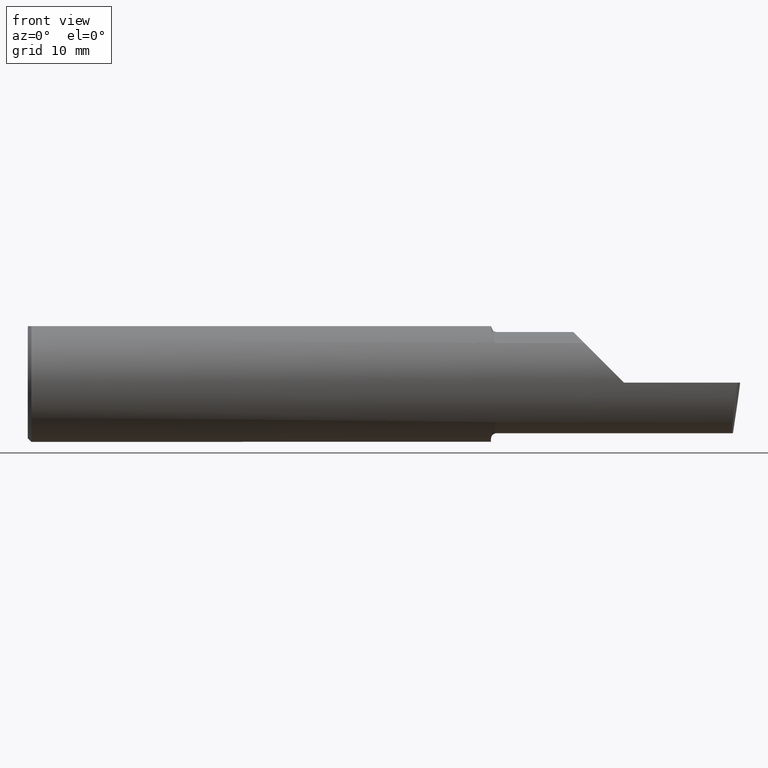
[diagram: clean part render]
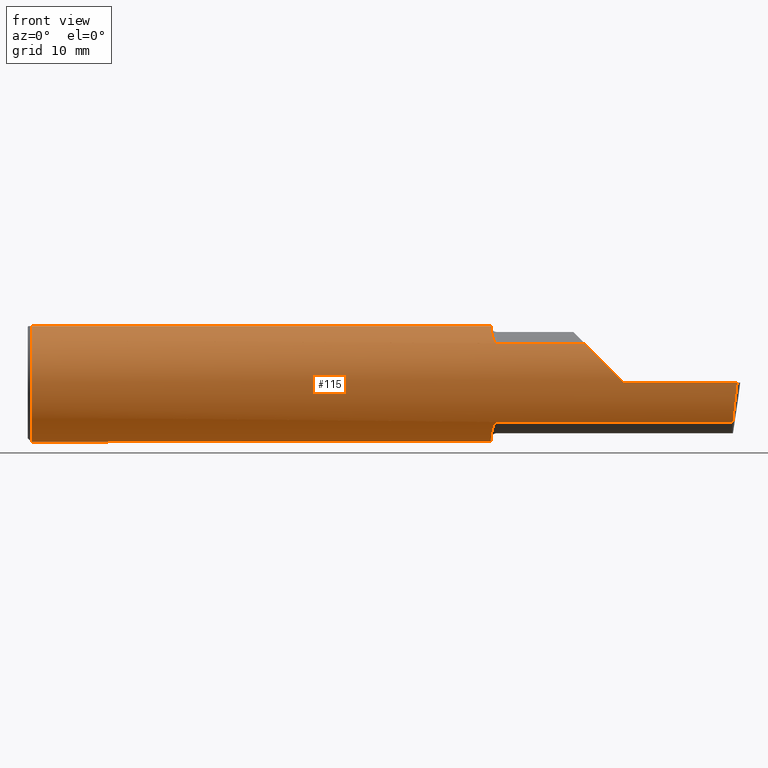
[diagram: same view with one face highlighted and labeled with its STEP entity id]
A machine part, front view. The second image highlights one B-rep face of the part: STEP entity #115.
In plain terms, the highlighted cylindrical surface (partial cylindrical patch) has radius 6.3462 mm, axis along (-1, -0, -0).
Its self-contained STEP definition (entity closure, byte-faithful):
#8 = CARTESIAN_POINT ( 'NONE',  ( 1.962797058507744996, -0.1743943839926588579, -0.1789958554125695989 ) ) ;
#9 = DIRECTION ( 'NONE',  ( 0.000000000000000000, 0.000000000000000000, -1.000000000000000000 ) ) ;
#12 = EDGE_CURVE ( 'NONE', #95, #238, #275, .T. ) ;
#13 = DIRECTION ( 'NONE',  ( -1.000000000000000000, -0.000000000000000000, -0.000000000000000000 ) ) ;
#15 = CIRCLE ( 'NONE', #571, 0.2498499999999999888 ) ;
#33 = CARTESIAN_POINT ( 'NONE',  ( 2.448145753305722927, -0.2498500000000000165, 0.06185424669427665861 ) ) ;
#42 = CARTESIAN_POINT ( 'NONE',  ( 1.951680550596499808, -0.1214972057705730191, 0.2186080375779522467 ) ) ;
#51 = CARTESIAN_POINT ( 'NONE',  ( 2.390325100969863392, -0.2278791102234763166, 0.1196748990301357285 ) ) ;
#57 = CARTESIAN_POINT ( 'NONE',  ( 1.950000000000000178, -0.08036415094339657839, 0.2365726648265749632 ) ) ;
#62 = CARTESIAN_POINT ( 'NONE',  ( 1.949999999999990186, -0.1016924291521890261, -0.2293274111511740820 ) ) ;
#68 = DIRECTION ( 'NONE',  ( 0.000000000000000000, 0.000000000000000000, 1.000000000000000000 ) ) ;
#69 = ORIENTED_EDGE ( 'NONE', *, *, #773, .F. ) ;
#72 = CARTESIAN_POINT ( 'NONE',  ( 1.950000000000000178, 0.000000000000000000, 0.000000000000000000 ) ) ;
#76 = EDGE_CURVE ( 'NONE', #426, #238, #850, .T. ) ;
#81 = AXIS2_PLACEMENT_3D ( 'NONE', #794, #202, #68 ) ;
#87 = ORIENTED_EDGE ( 'NONE', *, *, #667, .F. ) ;
#95 = VERTEX_POINT ( 'NONE', #771 ) ;
#96 = LINE ( 'NONE', #297, #243 ) ;
#106 = CARTESIAN_POINT ( 'NONE',  ( 2.344079160038586185, -0.1868028301886760500, 0.1659208399614119644 ) ) ;
#115 = ADVANCED_FACE ( 'NONE', ( #183 ), #799, .T. ) ;
#120 = CIRCLE ( 'NONE', #636, 0.2498499999999999888 ) ;
#125 = CARTESIAN_POINT ( 'NONE',  ( 1.965857071685141788, -0.1799228808997979934, 0.1733778622677449033 ) ) ;
#129 = VERTEX_POINT ( 'NONE', #731 ) ;
#135 = CARTESIAN_POINT ( 'NONE',  ( 1.951227564404961257, -0.1217005943024295350, -0.2193523119135136479 ) ) ;
#152 = CARTESIAN_POINT ( 'NONE',  ( 0.01499999999999999771, 0.000000000000000000, 0.000000000000000000 ) ) ;
#176 = ORIENTED_EDGE ( 'NONE', *, *, #802, .T. ) ;
#178 = CARTESIAN_POINT ( 'NONE',  ( 1.973548866468135321, -0.1868028301907317112, 0.1659208399590980654 ) ) ;
#182 = CARTESIAN_POINT ( 'NONE',  ( 1.975000000000000089, -0.1868028301886793530, 0.1659208399614086338 ) ) ;
#183 = FACE_OUTER_BOUND ( 'NONE', #190, .T. ) ;
#184 = CARTESIAN_POINT ( 'NONE',  ( 1.957343635746627397, -0.1582230848692697256, 0.1936715022401949149 ) ) ;
#190 = EDGE_LOOP ( 'NONE', ( #546, #176, #419, #242, #296, #823, #658, #684, #87, #69, #655, #573, #828 ) ) ;
#198 = CARTESIAN_POINT ( 'NONE',  ( 2.344079160038586185, -0.1868028301886760500, 0.1659208399614119644 ) ) ;
#200 = CARTESIAN_POINT ( 'NONE',  ( 0.000000000000000000, -0.07650098038587496707, 0.2378499999999999226 ) ) ;
#202 = DIRECTION ( 'NONE',  ( -1.000000000000000000, -0.000000000000000000, -0.000000000000000000 ) ) ;
#207 = AXIS2_PLACEMENT_3D ( 'NONE', #72, #608, #556 ) ;
#210 = CARTESIAN_POINT ( 'NONE',  ( 1.972232603162240805, -0.1862758070845874914, -0.1665151405181425626 ) ) ;
#213 = VERTEX_POINT ( 'NONE', #863 ) ;
#224 = VERTEX_POINT ( 'NONE', #460 ) ;
#227 = CARTESIAN_POINT ( 'NONE',  ( 1.950000000000000178, 0.000000000000000000, 0.000000000000000000 ) ) ;
#230 = CARTESIAN_POINT ( 'NONE',  ( 2.510000000000000231, -0.2498499999999999610, 6.000769315822035917E-17 ) ) ;
#238 = VERTEX_POINT ( 'NONE', #198 ) ;
#239 = CARTESIAN_POINT ( 'NONE',  ( 1.970144309637441360, -0.1849788583324331326, 0.1679547276881067919 ) ) ;
#242 = ORIENTED_EDGE ( 'NONE', *, *, #12, .T. ) ;
#243 = VECTOR ( 'NONE', #367, 39.37007874015748143 ) ;
#245 = CARTESIAN_POINT ( 'NONE',  ( 2.260000000000000231, -0.1868028301886794917, 0.1659208399614086338 ) ) ;
#255 = CARTESIAN_POINT ( 'NONE',  ( 1.961268146151109448, -0.1703904609315280150, 0.1828159088808244681 ) ) ;
#269 = CARTESIAN_POINT ( 'NONE',  ( 1.973547768521294765, -0.1868028301886793807, -0.1659208399614086893 ) ) ;
#275 =( BOUNDED_CURVE ( )  B_SPLINE_CURVE ( 3, ( #230, #33, #51, #106 ),
 .UNSPECIFIED., .F., .T. ) 
 B_SPLINE_CURVE_WITH_KNOTS ( ( 4, 4 ),
 ( 4.712388980384689674, 5.438654041019590935 ),
 .UNSPECIFIED. ) 
 CURVE ( )  GEOMETRIC_REPRESENTATION_ITEM ( )  RATIONAL_B_SPLINE_CURVE ( ( 1.000000000000000000, 0.9565258159410974237, 0.9565258159410974237, 1.000000000000000000 ) ) 
 REPRESENTATION_ITEM ( '' )  );
#281 = EDGE_CURVE ( 'NONE', #622, #481, #15, .T. ) ;
#291 = DIRECTION ( 'NONE',  ( -1.000000000000000000, -0.000000000000000000, -0.000000000000000000 ) ) ;
#296 = ORIENTED_EDGE ( 'NONE', *, *, #76, .F. ) ;
#297 = CARTESIAN_POINT ( 'NONE',  ( 1.878049121262586821E-31, -0.2498499999999999610, 7.172378389328440442E-16 ) ) ;
#304 = DIRECTION ( 'NONE',  ( 1.000000000000000000, 0.000000000000000000, 0.000000000000000000 ) ) ;
#311 = CARTESIAN_POINT ( 'NONE',  ( 1.952700302592143000, -0.1312404656039926620, 0.2128935242986064735 ) ) ;
#327 = VERTEX_POINT ( 'NONE', #826 ) ;
#328 = CARTESIAN_POINT ( 'NONE',  ( 1.950000000000000178, -0.08036415094339657839, -0.2365726648265749632 ) ) ;
#342 = CARTESIAN_POINT ( 'NONE',  ( 1.975000000000000089, -0.1868028301886793530, -0.1659208399614086338 ) ) ;
#358 =( BOUNDED_CURVE ( )  B_SPLINE_CURVE ( 3, ( #660, #480, #607, #867 ),
 .UNSPECIFIED., .F., .F. ) 
 B_SPLINE_CURVE_WITH_KNOTS ( ( 4, 4 ),
 ( 0.6344818218799018750, 1.360746882514782818 ),
 .UNSPECIFIED. ) 
 CURVE ( )  GEOMETRIC_REPRESENTATION_ITEM ( )  RATIONAL_B_SPLINE_CURVE ( ( 1.000000000000000000, 0.9565258159410998662, 0.9565258159410998662, 1.000000000000000000 ) ) 
 REPRESENTATION_ITEM ( '' )  );
#367 = DIRECTION ( 'NONE',  ( -1.000000000000000000, -0.000000000000000000, -0.000000000000000000 ) ) ;
#377 = EDGE_CURVE ( 'NONE', #327, #396, #422, .T. ) ;
#395 = B_SPLINE_CURVE_WITH_KNOTS ( 'NONE', 3,
 ( #57, #858, #521, #42, #311, #719, #184, #255, #849, #125, #580, #505, #239, #455, #178, #182 ),
 .UNSPECIFIED., .F., .F.,
 ( 4, 2, 2, 2, 2, 2, 2, 4 ),
 ( 0.0001034694911878116782, 0.0009591263138367395061, 0.001814783136485667320, 0.002670439959134594810, 0.003098268370459057036, 0.003312182576121292053, 0.003419139678952403272, 0.003526096781783514926 ),
 .UNSPECIFIED. ) ;
#396 = VERTEX_POINT ( 'NONE', #508 ) ;
#397 = CARTESIAN_POINT ( 'NONE',  ( 1.965875558094660303, -0.1799506819598040708, -0.1733486322212179631 ) ) ;
#405 = LINE ( 'NONE', #543, #447 ) ;
#419 = ORIENTED_EDGE ( 'NONE', *, *, #784, .T. ) ;
#420 = VECTOR ( 'NONE', #503, 39.37007874015748143 ) ;
#422 = CIRCLE ( 'NONE', #207, 0.2498499999999999888 ) ;
#424 = LINE ( 'NONE', #760, #788 ) ;
#426 = VERTEX_POINT ( 'NONE', #706 ) ;
#431 = DIRECTION ( 'NONE',  ( 0.000000000000000000, 0.000000000000000000, 1.000000000000000000 ) ) ;
#438 = EDGE_CURVE ( 'NONE', #396, #426, #395, .T. ) ;
#447 = VECTOR ( 'NONE', #479, 39.37007874015748143 ) ;
#455 = CARTESIAN_POINT ( 'NONE',  ( 1.972243150415551316, -0.1862809296394745129, 0.1665094106511989802 ) ) ;
#460 = CARTESIAN_POINT ( 'NONE',  ( 2.987221270274237561, -0.2498499999999999888, -6.495017623931042258E-17 ) ) ;
#468 = CARTESIAN_POINT ( 'NONE',  ( 0.01499999999998188026, -0.07650098038590467941, 0.2378500000000000059 ) ) ;
#470 = CARTESIAN_POINT ( 'NONE',  ( 1.969285582744839891, -0.1841881072713810741, -0.1688230283719349967 ) ) ;
#479 = DIRECTION ( 'NONE',  ( 1.000000000000000000, 0.000000000000000000, 0.000000000000000000 ) ) ;
#480 = CARTESIAN_POINT ( 'NONE',  ( 2.973097331270539989, -0.2278791102234774546, -0.1196748990301325227 ) ) ;
#481 = VERTEX_POINT ( 'NONE', #645 ) ;
#483 = VERTEX_POINT ( 'NONE', #586 ) ;
#487 = DIRECTION ( 'NONE',  ( -1.000000000000000000, -0.000000000000000000, -0.000000000000000000 ) ) ;
#503 = DIRECTION ( 'NONE',  ( 1.000000000000000000, 0.000000000000000000, 0.000000000000000000 ) ) ;
#505 = CARTESIAN_POINT ( 'NONE',  ( 1.969290397284158889, -0.1841927918507049733, 0.1688179232533557061 ) ) ;
#506 = VERTEX_POINT ( 'NONE', #342 ) ;
#508 = CARTESIAN_POINT ( 'NONE',  ( 1.950000000000000178, -0.08036415094339657839, 0.2365726648265749632 ) ) ;
#509 = EDGE_CURVE ( 'NONE', #327, #594, #664, .T. ) ;
#513 = B_SPLINE_CURVE_WITH_KNOTS ( 'NONE', 3,
 ( #590, #269, #210, #725, #470, #611, #397, #8, #547, #746, #659, #135, #62, #328 ),
 .UNSPECIFIED., .F., .F.,
 ( 4, 2, 2, 2, 2, 2, 4 ),
 ( 1.967619685218957390E-07, 0.0001090840123077855292, 0.0002179712626470491467, 0.0004357457633255781165, 0.0008712947646826340502, 0.001742392767396750905, 0.003484588772824981362 ),
 .UNSPECIFIED. ) ;
#515 = EDGE_CURVE ( 'NONE', #483, #481, #405, .T. ) ;
#521 = CARTESIAN_POINT ( 'NONE',  ( 1.950332084145229850, -0.1014027185340447140, 0.2286231260779312269 ) ) ;
#543 = CARTESIAN_POINT ( 'NONE',  ( 0.000000000000000000, 0.07650098038587500870, 0.2378499999999999226 ) ) ;
#546 = ORIENTED_EDGE ( 'NONE', *, *, #714, .F. ) ;
#547 = CARTESIAN_POINT ( 'NONE',  ( 1.961285743882607679, -0.1704402150608117228, -0.1827701868778695560 ) ) ;
#555 = CARTESIAN_POINT ( 'NONE',  ( 0.01499999999999999771, 0.000000000000000000, 0.000000000000000000 ) ) ;
#556 = DIRECTION ( 'NONE',  ( 0.000000000000000000, 0.000000000000000000, -1.000000000000000000 ) ) ;
#557 = AXIS2_PLACEMENT_3D ( 'NONE', #555, #291, #698 ) ;
#562 = EDGE_CURVE ( 'NONE', #506, #622, #513, .T. ) ;
#571 = AXIS2_PLACEMENT_3D ( 'NONE', #227, #304, #9 ) ;
#573 = ORIENTED_EDGE ( 'NONE', *, *, #281, .F. ) ;
#580 = CARTESIAN_POINT ( 'NONE',  ( 1.967018584423771976, -0.1817363555988615875, 0.1714722504633802991 ) ) ;
#586 = CARTESIAN_POINT ( 'NONE',  ( 0.01499999999999999771, 0.07650098038587500870, 0.2378499999999999226 ) ) ;
#590 = CARTESIAN_POINT ( 'NONE',  ( 1.975000000000000089, -0.1868028301886793530, -0.1659208399614086338 ) ) ;
#594 = VERTEX_POINT ( 'NONE', #468 ) ;
#607 = CARTESIAN_POINT ( 'NONE',  ( 2.979623920331825548, -0.2498499999999999610, -0.06185424669427498634 ) ) ;
#608 = DIRECTION ( 'NONE',  ( 1.000000000000000000, 0.000000000000000000, 0.000000000000000000 ) ) ;
#611 = CARTESIAN_POINT ( 'NONE',  ( 1.967016733372313864, -0.1817333077058770063, -0.1714754572696063628 ) ) ;
#622 = VERTEX_POINT ( 'NONE', #677 ) ;
#636 = AXIS2_PLACEMENT_3D ( 'NONE', #152, #487, #431 ) ;
#641 = CIRCLE ( 'NONE', #557, 0.2498499999999999888 ) ;
#645 = CARTESIAN_POINT ( 'NONE',  ( 1.950000000000000178, 0.07650098038587503646, 0.2378500000000000059 ) ) ;
#655 = ORIENTED_EDGE ( 'NONE', *, *, #515, .T. ) ;
#658 = ORIENTED_EDGE ( 'NONE', *, *, #377, .F. ) ;
#659 = CARTESIAN_POINT ( 'NONE',  ( 1.955537042546467319, -0.1495003888704987405, -0.2004994225712674327 ) ) ;
#660 = CARTESIAN_POINT ( 'NONE',  ( 2.968492717492763777, -0.1868028301886794917, -0.1659208399614086338 ) ) ;
#664 = LINE ( 'NONE', #200, #853 ) ;
#667 = EDGE_CURVE ( 'NONE', #213, #594, #641, .T. ) ;
#677 = CARTESIAN_POINT ( 'NONE',  ( 1.950000000000000178, -0.08036415094339657839, -0.2365726648265749632 ) ) ;
#684 = ORIENTED_EDGE ( 'NONE', *, *, #509, .T. ) ;
#698 = DIRECTION ( 'NONE',  ( 0.000000000000000000, 0.000000000000000000, 1.000000000000000000 ) ) ;
#706 = CARTESIAN_POINT ( 'NONE',  ( 1.975000000000000089, -0.1868028301886793530, 0.1659208399614086338 ) ) ;
#714 = EDGE_CURVE ( 'NONE', #129, #506, #424, .T. ) ;
#719 = CARTESIAN_POINT ( 'NONE',  ( 1.955553274544309605, -0.1495649063853949079, 0.2004446339470383753 ) ) ;
#725 = CARTESIAN_POINT ( 'NONE',  ( 1.970138573936401460, -0.1849738682364331088, -0.1679602226613252092 ) ) ;
#731 = CARTESIAN_POINT ( 'NONE',  ( 2.968492717492763777, -0.1868028301886794917, -0.1659208399614086338 ) ) ;
#746 = CARTESIAN_POINT ( 'NONE',  ( 1.957341173198633211, -0.1582250006961559707, -0.1936724403215125956 ) ) ;
#760 = CARTESIAN_POINT ( 'NONE',  ( 2.260000000000000231, -0.1868028301886794917, -0.1659208399614086338 ) ) ;
#764 = DIRECTION ( 'NONE',  ( -1.000000000000000000, -0.000000000000000000, -0.000000000000000000 ) ) ;
#771 = CARTESIAN_POINT ( 'NONE',  ( 2.510000000000000231, -0.2498499999999999610, 6.000769315822035917E-17 ) ) ;
#773 = EDGE_CURVE ( 'NONE', #483, #213, #120, .T. ) ;
#784 = EDGE_CURVE ( 'NONE', #224, #95, #96, .T. ) ;
#788 = VECTOR ( 'NONE', #764, 39.37007874015748143 ) ;
#794 = CARTESIAN_POINT ( 'NONE',  ( 0.000000000000000000, 0.000000000000000000, 0.000000000000000000 ) ) ;
#799 = CYLINDRICAL_SURFACE ( 'NONE', #81, 0.2498499999999999888 ) ;
#802 = EDGE_CURVE ( 'NONE', #129, #224, #358, .T. ) ;
#823 = ORIENTED_EDGE ( 'NONE', *, *, #438, .F. ) ;
#826 = CARTESIAN_POINT ( 'NONE',  ( 1.950000000000000178, -0.07650098038590473493, 0.2378500000000000059 ) ) ;
#828 = ORIENTED_EDGE ( 'NONE', *, *, #562, .F. ) ;
#849 = CARTESIAN_POINT ( 'NONE',  ( 1.962758562425230169, -0.1743135686468866574, 0.1790760091940041265 ) ) ;
#850 = LINE ( 'NONE', #245, #420 ) ;
#853 = VECTOR ( 'NONE', #13, 39.37007874015748143 ) ;
#858 = CARTESIAN_POINT ( 'NONE',  ( 1.950000000000000400, -0.09104204635388184197, 0.2329453649474655941 ) ) ;
#863 = CARTESIAN_POINT ( 'NONE',  ( 0.01499999999999999771, 0.000000000000000000, -0.2498499999999999888 ) ) ;
#867 = CARTESIAN_POINT ( 'NONE',  ( 2.987221270274237561, -0.2498499999999999888, -6.495017623931042258E-17 ) ) ;